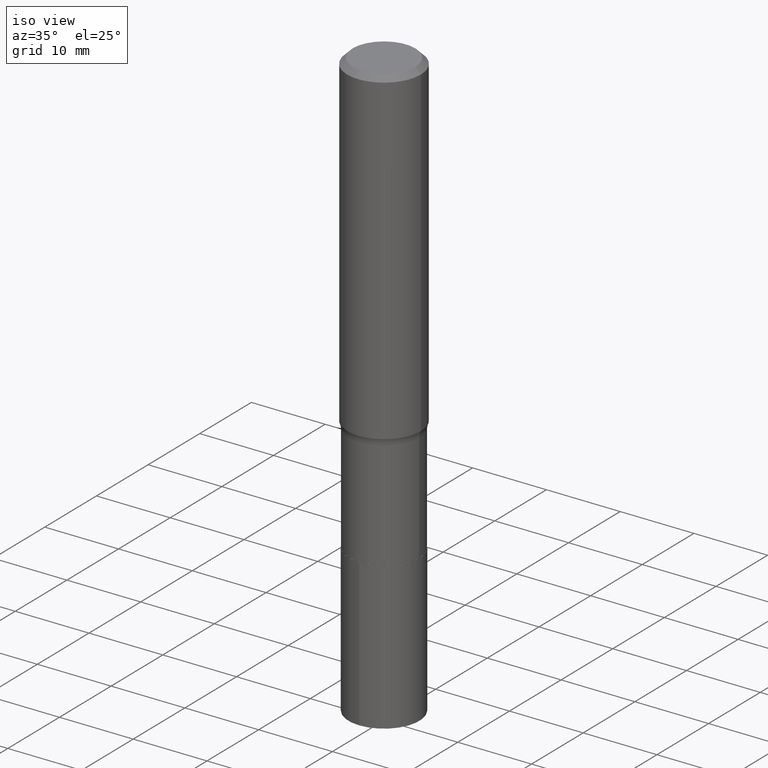
[diagram: clean part render]
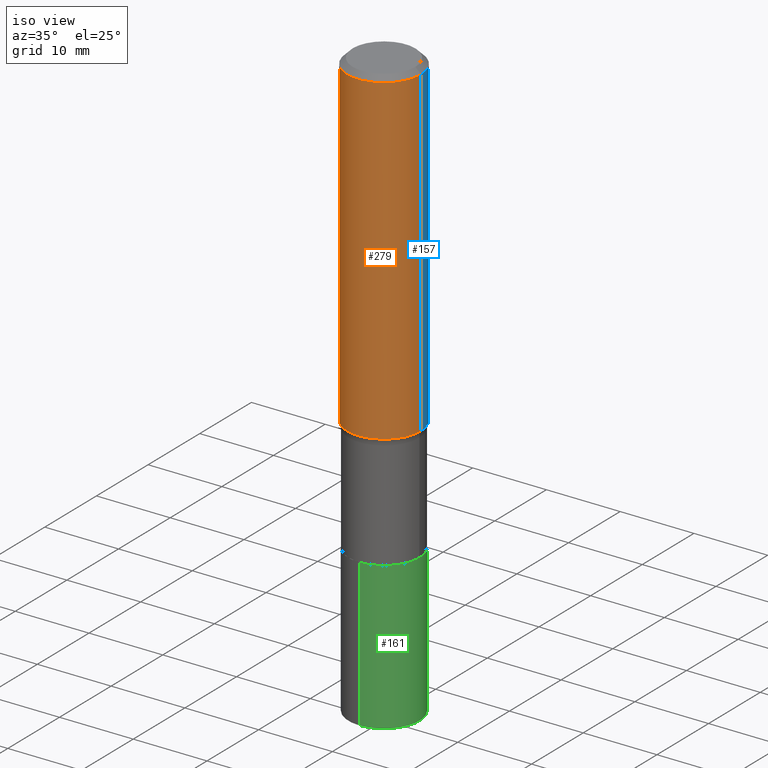
[diagram: same view with three faces highlighted in distinct colors, each labeled with its STEP entity id]
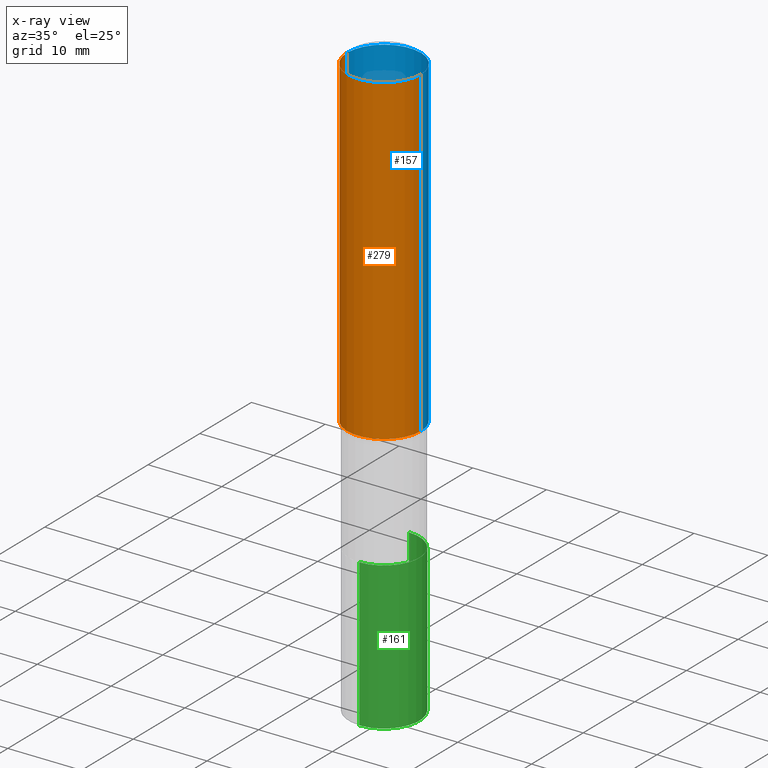
[diagram: x-ray of the same camera — body ghosted, the three highlighted faces saturated]
A machine part, iso view with three faces highlighted in distinct colors.
The next image is the same camera in x-ray (body ghosted, the three faces saturated) — at least one of them is partly hidden behind the body in this view.
Their STEP definitions:

[orange] entity #279 — the highlighted cylindrical surface (partial cylindrical patch) has radius 5 mm, axis along (-0, 0, 1).
#23 = EDGE_CURVE ( 'NONE', #237, #425, #371, .T. ) ;
#46 = AXIS2_PLACEMENT_3D ( 'NONE', #382, #379, #246 ) ;
#79 = CARTESIAN_POINT ( 'NONE',  ( -0.1968500000000001082, 1.398703375343757985E-15, -9.682923725166787881E-30 ) ) ;
#81 = VECTOR ( 'NONE', #356, 39.37007874015748143 ) ;
#111 = CIRCLE ( 'NONE', #369, 0.1968500000000000250 ) ;
#112 = CARTESIAN_POINT ( 'NONE',  ( 0.1968500000000001082, -1.374596203102542397E-15, 9.598753983154305062E-30 ) ) ;
#127 = ORIENTED_EDGE ( 'NONE', *, *, #240, .T. ) ;
#136 = EDGE_CURVE ( 'NONE', #195, #177, #219, .T. ) ;
#142 = DIRECTION ( 'NONE',  ( 1.000000000000000000, -6.982962677686266711E-15, 4.876176775795935793E-29 ) ) ;
#145 = DIRECTION ( 'NONE',  ( -2.445468806185136597E-29, 3.491481338843145583E-15, 1.000000000000000000 ) ) ;
#176 = DIRECTION ( 'NONE',  ( 1.000000000000000000, -6.982962677686265922E-15, 0.000000000000000000 ) ) ;
#177 = VERTEX_POINT ( 'NONE', #221 ) ;
#195 = VERTEX_POINT ( 'NONE', #253 ) ;
#219 = LINE ( 'NONE', #112, #401 ) ;
#221 = CARTESIAN_POINT ( 'NONE',  ( 0.1968500000000000250, -1.477690918335233294E-15, -0.02952750000000016473 ) ) ;
#237 = VERTEX_POINT ( 'NONE', #274 ) ;
#240 = EDGE_CURVE ( 'NONE', #237, #195, #248, .T. ) ;
#241 = ORIENTED_EDGE ( 'NONE', *, *, #136, .T. ) ;
#246 = DIRECTION ( 'NONE',  ( 1.000000000000000000, -6.982962677686265922E-15, 0.000000000000000000 ) ) ;
#248 = CIRCLE ( 'NONE', #46, 0.1968500000000002192 ) ;
#249 = EDGE_CURVE ( 'NONE', #425, #177, #111, .T. ) ;
#253 = CARTESIAN_POINT ( 'NONE',  ( 0.1968500000000002470, -7.482384981661755813E-15, -1.749340232929025296 ) ) ;
#265 = EDGE_LOOP ( 'NONE', ( #409, #127, #241, #442 ) ) ;
#274 = CARTESIAN_POINT ( 'NONE',  ( -0.1968500000000002470, -4.709085403215454840E-15, -1.749340232929025296 ) ) ;
#277 = DIRECTION ( 'NONE',  ( -2.445468806185136597E-29, 3.491481338843145583E-15, 1.000000000000000000 ) ) ;
#279 = ADVANCED_FACE ( 'NONE', ( #463 ), #350, .T. ) ;
#342 = CARTESIAN_POINT ( 'NONE',  ( -0.1968500000000000250, -1.706738371552194369E-15, -0.02952750000000016473 ) ) ;
#350 = CYLINDRICAL_SURFACE ( 'NONE', #384, 0.1968500000000001082 ) ;
#353 = CARTESIAN_POINT ( 'NONE',  ( 7.220858017463202479E-31, -1.030947152326915623E-16, -0.02952750000000016473 ) ) ;
#356 = DIRECTION ( 'NONE',  ( -2.445468806185136877E-29, 3.491481338843145188E-15, 1.000000000000000000 ) ) ;
#369 = AXIS2_PLACEMENT_3D ( 'NONE', #353, #145, #176 ) ;
#371 = LINE ( 'NONE', #79, #81 ) ;
#379 = DIRECTION ( 'NONE',  ( -2.445468806185136597E-29, 3.491481338843145583E-15, 1.000000000000000000 ) ) ;
#382 = CARTESIAN_POINT ( 'NONE',  ( 4.277956971032571973E-29, -6.107788778559213416E-15, -1.749340232929025296 ) ) ;
#384 = AXIS2_PLACEMENT_3D ( 'NONE', #427, #277, #142 ) ;
#401 = VECTOR ( 'NONE', #435, 39.37007874015748143 ) ;
#409 = ORIENTED_EDGE ( 'NONE', *, *, #23, .F. ) ;
#425 = VERTEX_POINT ( 'NONE', #342 ) ;
#427 = CARTESIAN_POINT ( 'NONE',  ( 0.000000000000000000, 0.000000000000000000, 0.000000000000000000 ) ) ;
#435 = DIRECTION ( 'NONE',  ( -2.445468806185136877E-29, 3.491481338843145188E-15, 1.000000000000000000 ) ) ;
#442 = ORIENTED_EDGE ( 'NONE', *, *, #249, .F. ) ;
#463 = FACE_OUTER_BOUND ( 'NONE', #265, .T. ) ;

[blue] entity #157 — the highlighted cylindrical surface (partial cylindrical patch) has radius 5 mm, axis along (-0, 0, 1).
#23 = EDGE_CURVE ( 'NONE', #237, #425, #371, .T. ) ;
#50 = EDGE_LOOP ( 'NONE', ( #174, #462, #351, #414 ) ) ;
#52 = DIRECTION ( 'NONE',  ( -2.445468806185136597E-29, 3.491481338843145583E-15, 1.000000000000000000 ) ) ;
#63 = DIRECTION ( 'NONE',  ( 1.000000000000000000, -6.982962677686265922E-15, 0.000000000000000000 ) ) ;
#79 = CARTESIAN_POINT ( 'NONE',  ( -0.1968500000000001082, 1.398703375343757985E-15, -9.682923725166787881E-30 ) ) ;
#81 = VECTOR ( 'NONE', #356, 39.37007874015748143 ) ;
#86 = AXIS2_PLACEMENT_3D ( 'NONE', #114, #188, #181 ) ;
#112 = CARTESIAN_POINT ( 'NONE',  ( 0.1968500000000001082, -1.374596203102542397E-15, 9.598753983154305062E-30 ) ) ;
#114 = CARTESIAN_POINT ( 'NONE',  ( 0.000000000000000000, 0.000000000000000000, 0.000000000000000000 ) ) ;
#131 = AXIS2_PLACEMENT_3D ( 'NONE', #134, #429, #63 ) ;
#134 = CARTESIAN_POINT ( 'NONE',  ( 7.220858017463202479E-31, -1.030947152326915623E-16, -0.02952750000000016473 ) ) ;
#136 = EDGE_CURVE ( 'NONE', #195, #177, #219, .T. ) ;
#157 = ADVANCED_FACE ( 'NONE', ( #251 ), #185, .T. ) ;
#174 = ORIENTED_EDGE ( 'NONE', *, *, #389, .T. ) ;
#177 = VERTEX_POINT ( 'NONE', #221 ) ;
#181 = DIRECTION ( 'NONE',  ( 1.000000000000000000, -6.982962677686266711E-15, 4.876176775795935793E-29 ) ) ;
#185 = CYLINDRICAL_SURFACE ( 'NONE', #86, 0.1968500000000001082 ) ;
#188 = DIRECTION ( 'NONE',  ( -2.445468806185136597E-29, 3.491481338843145583E-15, 1.000000000000000000 ) ) ;
#192 = CIRCLE ( 'NONE', #131, 0.1968500000000000250 ) ;
#195 = VERTEX_POINT ( 'NONE', #253 ) ;
#209 = CIRCLE ( 'NONE', #261, 0.1968500000000002192 ) ;
#214 = EDGE_CURVE ( 'NONE', #177, #425, #192, .T. ) ;
#219 = LINE ( 'NONE', #112, #401 ) ;
#221 = CARTESIAN_POINT ( 'NONE',  ( 0.1968500000000000250, -1.477690918335233294E-15, -0.02952750000000016473 ) ) ;
#237 = VERTEX_POINT ( 'NONE', #274 ) ;
#251 = FACE_OUTER_BOUND ( 'NONE', #50, .T. ) ;
#253 = CARTESIAN_POINT ( 'NONE',  ( 0.1968500000000002470, -7.482384981661755813E-15, -1.749340232929025296 ) ) ;
#261 = AXIS2_PLACEMENT_3D ( 'NONE', #374, #52, #452 ) ;
#274 = CARTESIAN_POINT ( 'NONE',  ( -0.1968500000000002470, -4.709085403215454840E-15, -1.749340232929025296 ) ) ;
#342 = CARTESIAN_POINT ( 'NONE',  ( -0.1968500000000000250, -1.706738371552194369E-15, -0.02952750000000016473 ) ) ;
#351 = ORIENTED_EDGE ( 'NONE', *, *, #214, .F. ) ;
#356 = DIRECTION ( 'NONE',  ( -2.445468806185136877E-29, 3.491481338843145188E-15, 1.000000000000000000 ) ) ;
#371 = LINE ( 'NONE', #79, #81 ) ;
#374 = CARTESIAN_POINT ( 'NONE',  ( 4.277956971032571973E-29, -6.107788778559213416E-15, -1.749340232929025296 ) ) ;
#389 = EDGE_CURVE ( 'NONE', #195, #237, #209, .T. ) ;
#401 = VECTOR ( 'NONE', #435, 39.37007874015748143 ) ;
#414 = ORIENTED_EDGE ( 'NONE', *, *, #136, .F. ) ;
#425 = VERTEX_POINT ( 'NONE', #342 ) ;
#429 = DIRECTION ( 'NONE',  ( -2.445468806185136597E-29, 3.491481338843145583E-15, 1.000000000000000000 ) ) ;
#435 = DIRECTION ( 'NONE',  ( -2.445468806185136877E-29, 3.491481338843145188E-15, 1.000000000000000000 ) ) ;
#452 = DIRECTION ( 'NONE',  ( 1.000000000000000000, -6.982962677686265922E-15, 0.000000000000000000 ) ) ;
#462 = ORIENTED_EDGE ( 'NONE', *, *, #23, .T. ) ;

[green] entity #161 — the highlighted cylindrical surface (partial cylindrical patch) has radius 4.8006 mm, axis along (-0, 0, 1).
#6 = CARTESIAN_POINT ( 'NONE',  ( 1.342925770586666472E-15, 0.1889999999999917579, -2.362600000000000477 ) ) ;
#30 = CARTESIAN_POINT ( 'NONE',  ( 1.342925770586646750E-15, 0.1889999999999917302, -2.362600000000000477 ) ) ;
#33 = VERTEX_POINT ( 'NONE', #6 ) ;
#43 = AXIS2_PLACEMENT_3D ( 'NONE', #324, #436, #48 ) ;
#45 = EDGE_CURVE ( 'NONE', #193, #314, #223, .T. ) ;
#48 = DIRECTION ( 'NONE',  ( -6.982962677686265922E-15, -1.000000000000000000, 2.890844437739961472E-15 ) ) ;
#60 = LINE ( 'NONE', #30, #186 ) ;
#72 = EDGE_LOOP ( 'NONE', ( #226, #135, #281, #98 ) ) ;
#85 = DIRECTION ( 'NONE',  ( -2.446001586434225329E-29, 3.490718367202482243E-15, 1.000000000000000000 ) ) ;
#98 = ORIENTED_EDGE ( 'NONE', *, *, #175, .F. ) ;
#102 = DIRECTION ( 'NONE',  ( -6.982962677686265922E-15, -1.000000000000000000, 2.890844437739961472E-15 ) ) ;
#116 = CYLINDRICAL_SURFACE ( 'NONE', #238, 0.1889999999999999736 ) ;
#135 = ORIENTED_EDGE ( 'NONE', *, *, #290, .T. ) ;
#147 = DIRECTION ( 'NONE',  ( -6.982962677686265922E-15, -1.000000000000000000, 2.890844437739961472E-15 ) ) ;
#155 = VECTOR ( 'NONE', #227, 39.37007874015748143 ) ;
#161 = ADVANCED_FACE ( 'NONE', ( #222 ), #116, .T. ) ;
#175 = EDGE_CURVE ( 'NONE', #193, #416, #399, .T. ) ;
#183 = CARTESIAN_POINT ( 'NONE',  ( -1.319779946082627116E-15, -0.1890000000000109925, -3.149600000000000399 ) ) ;
#186 = VECTOR ( 'NONE', #394, 39.37007874015748143 ) ;
#193 = VERTEX_POINT ( 'NONE', #183 ) ;
#208 = AXIS2_PLACEMENT_3D ( 'NONE', #468, #284, #102 ) ;
#222 = FACE_OUTER_BOUND ( 'NONE', #72, .T. ) ;
#223 = CIRCLE ( 'NONE', #43, 0.1889999999999999736 ) ;
#226 = ORIENTED_EDGE ( 'NONE', *, *, #45, .T. ) ;
#227 = DIRECTION ( 'NONE',  ( -2.446001586434225329E-29, 3.490718367202482243E-15, 1.000000000000000000 ) ) ;
#238 = AXIS2_PLACEMENT_3D ( 'NONE', #408, #85, #147 ) ;
#255 = EDGE_CURVE ( 'NONE', #416, #33, #432, .T. ) ;
#280 = CARTESIAN_POINT ( 'NONE',  ( 1.342925770586656414E-15, 0.1889999999999889824, -3.149600000000001288 ) ) ;
#281 = ORIENTED_EDGE ( 'NONE', *, *, #255, .F. ) ;
#284 = DIRECTION ( 'NONE',  ( -2.446001586434225329E-29, 3.490718367202482243E-15, 1.000000000000000000 ) ) ;
#290 = EDGE_CURVE ( 'NONE', #314, #33, #60, .T. ) ;
#314 = VERTEX_POINT ( 'NONE', #280 ) ;
#324 = CARTESIAN_POINT ( 'NONE',  ( 7.702667850016740557E-29, -1.099616916613917186E-14, -3.149600000000000843 ) ) ;
#344 = CARTESIAN_POINT ( 'NONE',  ( -1.319779946082646246E-15, -0.1890000000000082447, -2.362599999999999589 ) ) ;
#394 = DIRECTION ( 'NONE',  ( -2.446001586434225329E-29, 3.490718367202482243E-15, 1.000000000000000000 ) ) ;
#399 = LINE ( 'NONE', #430, #155 ) ;
#408 = CARTESIAN_POINT ( 'NONE',  ( 5.777664601493003770E-29, -8.248973811150816829E-15, -2.362600000000000033 ) ) ;
#416 = VERTEX_POINT ( 'NONE', #344 ) ;
#430 = CARTESIAN_POINT ( 'NONE',  ( -1.319779946082646246E-15, -0.1890000000000082447, -2.362599999999999589 ) ) ;
#432 = CIRCLE ( 'NONE', #208, 0.1889999999999999736 ) ;
#436 = DIRECTION ( 'NONE',  ( -2.446001586434225329E-29, 3.490718367202482243E-15, 1.000000000000000000 ) ) ;
#468 = CARTESIAN_POINT ( 'NONE',  ( 5.777664601493003770E-29, -8.248973811150816829E-15, -2.362600000000000033 ) ) ;